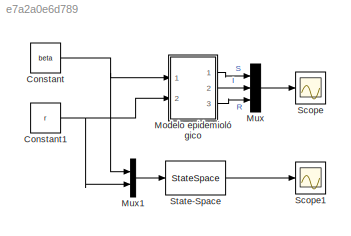
MODEL slx_e7a2a0e6d789
KIND model
CONFIG AbsTol = auto
CONFIG EnableMultiTasking = off
CONFIG FixedStep = auto
CONFIG MaxStep = 1e-2
CONFIG MinStep = auto
CONFIG RelTol = 1e-3
CONFIG SampleTimeConstraint = Unconstrained
CONFIG Solver = VariableStepAuto
CONFIG SolverName = VariableStepAuto
CONFIG StartTime = 0.0
CONFIG StopTime = 5
BLOCK [Constant] Constant
  Value = beta
BLOCK [Constant] Constant1
  Value = r
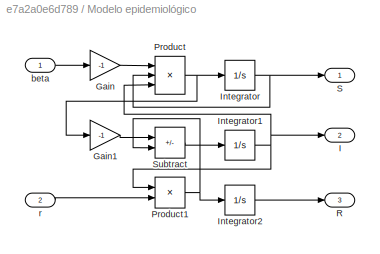
BLOCK [SubSystem] Modelo epidemiológico
  Ports = [2, 3]
  RequestExecContextInheritance = off
BLOCK [Gain] Modelo epidemiológico/Gain
  Gain = -1
BLOCK [Gain] Modelo epidemiológico/Gain1
  Gain = -1
BLOCK [Outport] Modelo epidemiológico/I
  Port = 2
BLOCK [Integrator] Modelo epidemiológico/Integrator
  InitialCondition = S0
  Ports = [1, 1]
BLOCK [Integrator] Modelo epidemiológico/Integrator1
  InitialCondition = I0
  Ports = [1, 1]
BLOCK [Integrator] Modelo epidemiológico/Integrator2
  InitialCondition = R0
  Ports = [1, 1]
BLOCK [Product] Modelo epidemiológico/Product
  Inputs = 3
  Ports = [3, 1]
BLOCK [Product] Modelo epidemiológico/Product1
  Ports = [2, 1]
BLOCK [Outport] Modelo epidemiológico/R
  Port = 3
BLOCK [Outport] Modelo epidemiológico/S
BLOCK [Sum] Modelo epidemiológico/Subtract
  IconShape = rectangular
  Inputs = +-
  Ports = [2, 1]
BLOCK [Inport] Modelo epidemiológico/beta
BLOCK [Inport] Modelo epidemiológico/r
  Port = 2
BLOCK [Mux] Mux
  DisplayOption = bar
  Inputs = 3
  Ports = [3, 1]
BLOCK [Mux] Mux1
  DisplayOption = bar
  Inputs = 2
  Ports = [2, 1]
BLOCK [Scope] Scope
  Floating = off
  NumInputPorts = 1
  Ports = [1]
  ScopeSpecificationString = Simulink.scopes.TimeScopeBlockCfg('CurrentConfiguration', extmgr.ConfigurationSet(extmgr.Configuration('Core','General UI',true),extmgr.Configuration('Core','Source UI',true),extmgr.Configuration('Sources','WiredSimulink',true),extmgr.Configuration('Visuals','Time Domain',true,'SerializedDisplays',{struct('MinYLimReal','-62.375','MaxYLimReal','561.375','YLabelReal','','MinYLimMag','0.00000','MaxYL...<+1376ch>
BLOCK [Scope] Scope1
  Floating = off
  NumInputPorts = 1
  Ports = [1]
  ScopeSpecificationString = Simulink.scopes.TimeScopeBlockCfg('CurrentConfiguration', extmgr.ConfigurationSet(extmgr.Configuration('Core','General UI',true),extmgr.Configuration('Core','Source UI',true),extmgr.Configuration('Sources','WiredSimulink',true,'DataLoggingVariableName','ScopeData1'),extmgr.Configuration('Visuals','Time Domain',true,'SerializedDisplays',{struct('MinYLimReal','-62.375','MaxYLimReal','561.375','YLabe...<+1415ch>
BLOCK [StateSpace] State-Space
  A = A
  B = B
  C = C
  D = D
  InitialCondition = x0
  Ports = [1, 1]
NET Constant1:1 -> Modelo epidemiológico:2, Mux1:2
NET Constant:1 -> Modelo epidemiológico:1, Mux1:1
LINE Modelo epidemiológico/Gain1:1 -> Modelo epidemiológico/Subtract:1
LINE Modelo epidemiológico/Gain:1 -> Modelo epidemiológico/Product:1
NET Modelo epidemiológico/Integrator1:1 -> Modelo epidemiológico/I:1, Modelo epidemiológico/Product1:1, Modelo epidemiológico/Product:3
LINE Modelo epidemiológico/Integrator2:1 -> Modelo epidemiológico/R:1
NET Modelo epidemiológico/Integrator:1 -> Modelo epidemiológico/Product:2, Modelo epidemiológico/S:1
NET Modelo epidemiológico/Product1:1 -> Modelo epidemiológico/Integrator2:1, Modelo epidemiológico/Subtract:2
NET Modelo epidemiológico/Product:1 -> Modelo epidemiológico/Gain1:1, Modelo epidemiológico/Integrator:1
LINE Modelo epidemiológico/Subtract:1 -> Modelo epidemiológico/Integrator1:1
LINE Modelo epidemiológico/beta:1 -> Modelo epidemiológico/Gain:1
LINE Modelo epidemiológico/r:1 -> Modelo epidemiológico/Product1:2
LINE Modelo epidemiológico:1 -> Mux:1
LINE Modelo epidemiológico:2 -> Mux:2
LINE Modelo epidemiológico:3 -> Mux:3
LINE Mux1:1 -> State-Space:1
LINE Mux:1 -> Scope:1
LINE State-Space:1 -> Scope1:1
note: NET lines group one-source signal fan-out (src -> all destinations, sorted); 1:1 wires keep LINE
